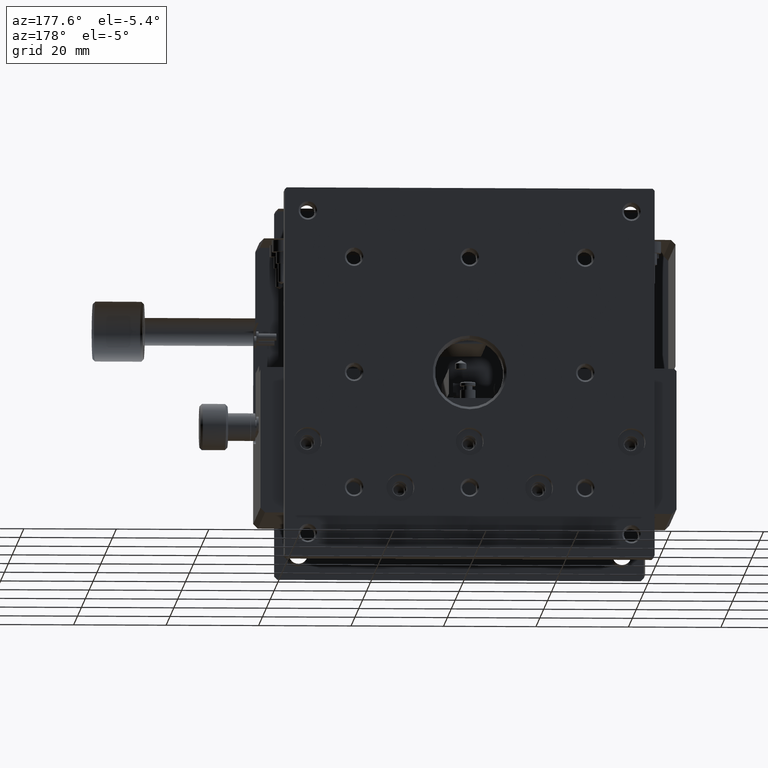
[diagram: clean part render]
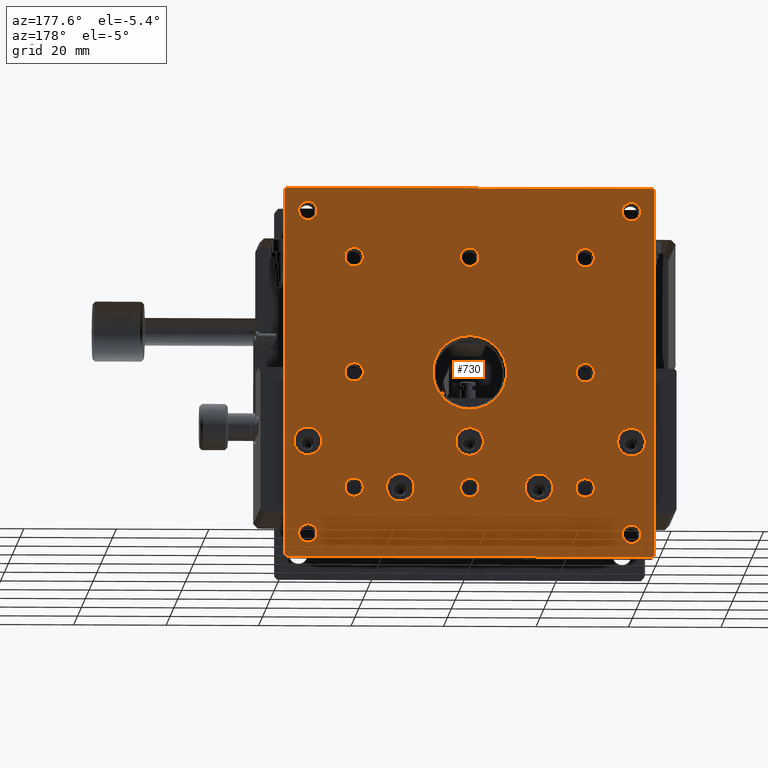
[diagram: same view with one face highlighted and labeled with its STEP entity id]
A machine part, auxiliary view. The second image highlights one B-rep face of the part: STEP entity #730.
In plain terms, the highlighted planar face has unit normal (0, 1, 0).
Its self-contained STEP definition (entity closure, byte-faithful):
#78 = ORIENTED_EDGE ( 'NONE', *, *, #9192, .F. ) ;
#195 = CARTESIAN_POINT ( 'NONE',  ( 65.00000000000000000, 54.99999999994315658, -62.99999999998817657 ) ) ;
#266 = CIRCLE ( 'NONE', #2776, 3.000000000000002665 ) ;
#437 = AXIS2_PLACEMENT_3D ( 'NONE', #8819, #518, #4216 ) ;
#453 = CIRCLE ( 'NONE', #8775, 1.999999999966348252 ) ;
#457 = FACE_BOUND ( 'NONE', #9647, .T. ) ;
#471 = ORIENTED_EDGE ( 'NONE', *, *, #8570, .T. ) ;
#473 = ORIENTED_EDGE ( 'NONE', *, *, #7778, .F. ) ;
#518 = DIRECTION ( 'NONE',  ( 0.000000000000000000, 1.000000000000000000, 0.000000000000000000 ) ) ;
#545 = AXIS2_PLACEMENT_3D ( 'NONE', #3341, #4133, #10624 ) ;
#575 = DIRECTION ( 'NONE',  ( 0.000000000000000000, -1.000000000000000000, -0.000000000000000000 ) ) ;
#577 = FACE_BOUND ( 'NONE', #6836, .T. ) ;
#634 = DIRECTION ( 'NONE',  ( 0.000000000000000000, 0.000000000000000000, 1.000000000000000000 ) ) ;
#637 = FACE_BOUND ( 'NONE', #5673, .T. ) ;
#698 = ORIENTED_EDGE ( 'NONE', *, *, #4987, .T. ) ;
#730 = ADVANCED_FACE ( 'NONE', ( #9735, #11513, #7139, #577, #6114, #3186, #10587, #8880, #1352, #4275, #457, #4160, #3238, #1538, #7855, #7967, #10647, #1416, #637 ), #5258, .T. ) ;
#764 = CARTESIAN_POINT ( 'NONE',  ( 79.57999999999999829, 55.00000000000000000, -80.00000000000000000 ) ) ;
#852 = CIRCLE ( 'NONE', #1423, 1.999999999957263297 ) ;
#904 = CARTESIAN_POINT ( 'NONE',  ( 0.4200000000000030376, 55.00000000000000000, -80.00000000000000000 ) ) ;
#943 = VERTEX_POINT ( 'NONE', #8454 ) ;
#964 = EDGE_CURVE ( 'NONE', #9982, #10717, #10269, .T. ) ;
#1115 = DIRECTION ( 'NONE',  ( 0.000000000000000000, 0.000000000000000000, 1.000000000000000000 ) ) ;
#1128 = ORIENTED_EDGE ( 'NONE', *, *, #5146, .T. ) ;
#1146 = DIRECTION ( 'NONE',  ( 0.000000000000000000, 0.000000000000000000, -1.000000000000000000 ) ) ;
#1158 = DIRECTION ( 'NONE',  ( -0.7071067811865460184, -0.000000000000000000, -0.7071067811865489050 ) ) ;
#1191 = EDGE_LOOP ( 'NONE', ( #10893 ) ) ;
#1193 = EDGE_LOOP ( 'NONE', ( #1248 ) ) ;
#1196 = DIRECTION ( 'NONE',  ( 0.7071067811865460184, -0.000000000000000000, -0.7071067811865489050 ) ) ;
#1242 = EDGE_CURVE ( 'NONE', #6350, #6350, #266, .T. ) ;
#1248 = ORIENTED_EDGE ( 'NONE', *, *, #4296, .T. ) ;
#1288 = CARTESIAN_POINT ( 'NONE',  ( 5.000000000000000000, 54.99999999994315658, -72.99999999997908162 ) ) ;
#1347 = VERTEX_POINT ( 'NONE', #4949 ) ;
#1352 = FACE_BOUND ( 'NONE', #5313, .T. ) ;
#1392 = EDGE_CURVE ( 'NONE', #943, #943, #4533, .T. ) ;
#1416 = FACE_BOUND ( 'NONE', #6709, .T. ) ;
#1423 = AXIS2_PLACEMENT_3D ( 'NONE', #1536, #3184, #1472 ) ;
#1459 = ORIENTED_EDGE ( 'NONE', *, *, #4366, .T. ) ;
#1464 = CARTESIAN_POINT ( 'NONE',  ( 40.00000000000000000, 55.00000000000000000, -40.00000000000000000 ) ) ;
#1472 = DIRECTION ( 'NONE',  ( 0.000000000000000000, 0.000000000000000000, 1.000000000000000000 ) ) ;
#1513 = CARTESIAN_POINT ( 'NONE',  ( 80.00000000000000000, 55.00000000000000000, 0.000000000000000000 ) ) ;
#1536 = CARTESIAN_POINT ( 'NONE',  ( 75.00000000000000000, 55.00000000000000000, -5.000000000000009770 ) ) ;
#1538 = FACE_BOUND ( 'NONE', #11885, .T. ) ;
#1567 = DIRECTION ( 'NONE',  ( 0.7071067811865474617, -0.000000000000000000, 0.7071067811865474617 ) ) ;
#1576 = DIRECTION ( 'NONE',  ( 0.000000000000000000, -1.000000000000000000, -0.000000000000000000 ) ) ;
#1642 = VERTEX_POINT ( 'NONE', #1742 ) ;
#1697 = DIRECTION ( 'NONE',  ( 0.000000000000000000, -1.000000000000000000, 0.000000000000000000 ) ) ;
#1700 = DIRECTION ( 'NONE',  ( 0.000000000000000000, -1.000000000000000000, -0.000000000000000000 ) ) ;
#1707 = CARTESIAN_POINT ( 'NONE',  ( 75.00000000000000000, 55.00000000000000000, -58.00000000000000000 ) ) ;
#1742 = CARTESIAN_POINT ( 'NONE',  ( 79.99999999999998579, 55.00000000000000000, -79.58000000000001251 ) ) ;
#1875 = VECTOR ( 'NONE', #7055, 1000.000000000000000 ) ;
#1942 = CARTESIAN_POINT ( 'NONE',  ( 65.00000000000000000, 55.00000000000000000, -15.00000000000000000 ) ) ;
#1980 = VECTOR ( 'NONE', #10730, 1000.000000000000000 ) ;
#2008 = CARTESIAN_POINT ( 'NONE',  ( 0.000000000000000000, 55.00000000000000000, -0.4200000000000019829 ) ) ;
#2028 = ORIENTED_EDGE ( 'NONE', *, *, #9988, .T. ) ;
#2070 = CARTESIAN_POINT ( 'NONE',  ( 0.4200000000000000955, 55.00000000000000000, -1.355252715606880543E-17 ) ) ;
#2120 = DIRECTION ( 'NONE',  ( 0.000000000000000000, -1.000000000000000000, -0.000000000000000000 ) ) ;
#2210 = DIRECTION ( 'NONE',  ( 0.000000000000000000, -1.000000000000000000, -0.000000000000000000 ) ) ;
#2264 = CARTESIAN_POINT ( 'NONE',  ( 5.000000000000000000, 54.99999999994315658, -75.00000000000000000 ) ) ;
#2265 = CARTESIAN_POINT ( 'NONE',  ( 0.000000000000000000, 55.00000000000000000, 0.000000000000000000 ) ) ;
#2331 = CARTESIAN_POINT ( 'NONE',  ( 75.00000000000000000, 54.99999999994315658, -75.00000000000000000 ) ) ;
#2332 = ORIENTED_EDGE ( 'NONE', *, *, #8718, .T. ) ;
#2543 = CARTESIAN_POINT ( 'NONE',  ( 9.012430558785755608E-16, 55.00000000000000000, -79.58000000000001251 ) ) ;
#2776 = AXIS2_PLACEMENT_3D ( 'NONE', #4566, #1697, #11800 ) ;
#2841 = CIRCLE ( 'NONE', #7319, 8.000000000000000000 ) ;
#2849 = ORIENTED_EDGE ( 'NONE', *, *, #10786, .T. ) ;
#2851 = VECTOR ( 'NONE', #1196, 1000.000000000000114 ) ;
#2949 = VECTOR ( 'NONE', #1158, 1000.000000000000114 ) ;
#3003 = CARTESIAN_POINT ( 'NONE',  ( 65.00000000000000000, 54.99999999994315658, -65.00000000000000000 ) ) ;
#3005 = VERTEX_POINT ( 'NONE', #4367 ) ;
#3008 = DIRECTION ( 'NONE',  ( 0.000000000000000000, 0.000000000000000000, -1.000000000000000000 ) ) ;
#3023 = CARTESIAN_POINT ( 'NONE',  ( 0.4200000000000019829, 55.00000000000000000, -80.00000000000000000 ) ) ;
#3041 = CARTESIAN_POINT ( 'NONE',  ( 75.00000000000000000, 55.00000000000000000, -3.000000000042746251 ) ) ;
#3068 = DIRECTION ( 'NONE',  ( 0.000000000000000000, -0.000000000000000000, 1.000000000000000000 ) ) ;
#3112 = DIRECTION ( 'NONE',  ( 0.000000000000000000, -1.000000000000000000, -0.000000000000000000 ) ) ;
#3115 = EDGE_LOOP ( 'NONE', ( #4230 ) ) ;
#3127 = DIRECTION ( 'NONE',  ( 0.000000000000000000, 0.000000000000000000, 1.000000000000000000 ) ) ;
#3128 = CARTESIAN_POINT ( 'NONE',  ( -6.776263578034401172E-18, 55.00000000000000000, -0.4200000000000024269 ) ) ;
#3157 = EDGE_LOOP ( 'NONE', ( #8598 ) ) ;
#3181 = VERTEX_POINT ( 'NONE', #1288 ) ;
#3184 = DIRECTION ( 'NONE',  ( 0.000000000000000000, -1.000000000000000000, -0.000000000000000000 ) ) ;
#3186 = FACE_BOUND ( 'NONE', #11379, .T. ) ;
#3238 = FACE_BOUND ( 'NONE', #7556, .T. ) ;
#3315 = EDGE_CURVE ( 'NONE', #3181, #3181, #9933, .T. ) ;
#3341 = CARTESIAN_POINT ( 'NONE',  ( 5.000000000000000000, 55.00000000000000000, -5.000000000000000000 ) ) ;
#3433 = AXIS2_PLACEMENT_3D ( 'NONE', #1942, #2120, #3786 ) ;
#3540 = CARTESIAN_POINT ( 'NONE',  ( 5.000000000000000000, 55.00000000000000000, -58.00000000000000000 ) ) ;
#3583 = LINE ( 'NONE', #3756, #8304 ) ;
#3638 = EDGE_CURVE ( 'NONE', #10922, #8085, #4584, .T. ) ;
#3645 = CARTESIAN_POINT ( 'NONE',  ( 15.00000000000000000, 54.99999999994315658, -38.00000000001091394 ) ) ;
#3687 = CIRCLE ( 'NONE', #3882, 1.999999999989086952 ) ;
#3756 = CARTESIAN_POINT ( 'NONE',  ( 0.000000000000000000, 55.00000000000000000, 0.000000000000000000 ) ) ;
#3786 = DIRECTION ( 'NONE',  ( 0.000000000000000000, 0.000000000000000000, 1.000000000000000000 ) ) ;
#3822 = VERTEX_POINT ( 'NONE', #6325 ) ;
#3825 = DIRECTION ( 'NONE',  ( 0.000000000000000000, -1.000000000000000000, 0.000000000000000000 ) ) ;
#3837 = CARTESIAN_POINT ( 'NONE',  ( 80.00000000000000000, 55.00000000000000000, -0.4199999999999998179 ) ) ;
#3838 = EDGE_CURVE ( 'NONE', #11507, #11507, #2841, .T. ) ;
#3848 = DIRECTION ( 'NONE',  ( 0.000000000000000000, 0.000000000000000000, 1.000000000000000000 ) ) ;
#3882 = AXIS2_PLACEMENT_3D ( 'NONE', #4450, #4207, #6037 ) ;
#3973 = VERTEX_POINT ( 'NONE', #6715 ) ;
#4008 = CIRCLE ( 'NONE', #3433, 1.999999999966348252 ) ;
#4013 = AXIS2_PLACEMENT_3D ( 'NONE', #9099, #1700, #8315 ) ;
#4025 = DIRECTION ( 'NONE',  ( 0.000000000000000000, -1.000000000000000000, -0.000000000000000000 ) ) ;
#4037 = EDGE_LOOP ( 'NONE', ( #10851 ) ) ;
#4044 = EDGE_CURVE ( 'NONE', #1347, #1347, #6745, .T. ) ;
#4091 = CARTESIAN_POINT ( 'NONE',  ( 40.00000000000000000, 54.99999999994315658, -65.00000000000000000 ) ) ;
#4109 = DIRECTION ( 'NONE',  ( 0.000000000000000000, -1.000000000000000000, 0.000000000000000000 ) ) ;
#4133 = DIRECTION ( 'NONE',  ( 0.000000000000000000, -1.000000000000000000, -0.000000000000000000 ) ) ;
#4160 = FACE_BOUND ( 'NONE', #7632, .T. ) ;
#4196 = VERTEX_POINT ( 'NONE', #7892 ) ;
#4207 = DIRECTION ( 'NONE',  ( 0.000000000000000000, -1.000000000000000000, -0.000000000000000000 ) ) ;
#4216 = DIRECTION ( 'NONE',  ( 0.000000000000000000, -0.000000000000000000, 1.000000000000000000 ) ) ;
#4230 = ORIENTED_EDGE ( 'NONE', *, *, #4044, .T. ) ;
#4263 = DIRECTION ( 'NONE',  ( 0.000000000000000000, -1.000000000000000000, -0.000000000000000000 ) ) ;
#4275 = FACE_BOUND ( 'NONE', #9601, .T. ) ;
#4296 = EDGE_CURVE ( 'NONE', #3973, #3973, #11010, .T. ) ;
#4366 = EDGE_CURVE ( 'NONE', #7126, #1642, #8730, .T. ) ;
#4367 = CARTESIAN_POINT ( 'NONE',  ( 79.58000000000001251, 55.00000000000000000, -2.602085213965210247E-15 ) ) ;
#4450 = CARTESIAN_POINT ( 'NONE',  ( 65.00000000000000000, 54.99999999994315658, -40.00000000000000000 ) ) ;
#4533 = CIRCLE ( 'NONE', #5896, 3.000000000000002665 ) ;
#4566 = CARTESIAN_POINT ( 'NONE',  ( 55.00000000000000000, 55.00000000000000000, -65.00000000000000000 ) ) ;
#4584 = LINE ( 'NONE', #11995, #1980 ) ;
#4596 = EDGE_CURVE ( 'NONE', #7484, #8085, #6560, .T. ) ;
#4682 = ORIENTED_EDGE ( 'NONE', *, *, #11121, .T. ) ;
#4831 = DIRECTION ( 'NONE',  ( 0.000000000000000000, -1.000000000000000000, -0.000000000000000000 ) ) ;
#4857 = LINE ( 'NONE', #9401, #5488 ) ;
#4949 = CARTESIAN_POINT ( 'NONE',  ( 15.00000000000000000, 54.99999999994315658, -62.99999999998817657 ) ) ;
#4987 = EDGE_CURVE ( 'NONE', #5191, #5191, #9650, .T. ) ;
#5002 = DIRECTION ( 'NONE',  ( 0.000000000000000000, 0.000000000000000000, 1.000000000000000000 ) ) ;
#5054 = CARTESIAN_POINT ( 'NONE',  ( 40.00000000000000000, 54.99999999994315658, -62.99999999998817657 ) ) ;
#5073 = ORIENTED_EDGE ( 'NONE', *, *, #6121, .T. ) ;
#5146 = EDGE_CURVE ( 'NONE', #9982, #3005, #3583, .T. ) ;
#5191 = VERTEX_POINT ( 'NONE', #1707 ) ;
#5250 = DIRECTION ( 'NONE',  ( 0.000000000000000000, 0.000000000000000000, -1.000000000000000000 ) ) ;
#5258 = PLANE ( 'NONE',  #437 ) ;
#5313 = EDGE_LOOP ( 'NONE', ( #5073 ) ) ;
#5345 = EDGE_CURVE ( 'NONE', #11864, #11864, #11034, .T. ) ;
#5371 = EDGE_LOOP ( 'NONE', ( #2028 ) ) ;
#5488 = VECTOR ( 'NONE', #11542, 999.9999999999998863 ) ;
#5491 = EDGE_CURVE ( 'NONE', #10951, #10951, #11041, .T. ) ;
#5673 = EDGE_LOOP ( 'NONE', ( #11666 ) ) ;
#5758 = CARTESIAN_POINT ( 'NONE',  ( 75.00000000000000000, 55.00000000000000000, -55.00000000000000000 ) ) ;
#5799 = CARTESIAN_POINT ( 'NONE',  ( 15.00000000000000000, 55.00000000000000000, -15.00000000000000000 ) ) ;
#5800 = AXIS2_PLACEMENT_3D ( 'NONE', #11531, #4109, #7807 ) ;
#5896 = AXIS2_PLACEMENT_3D ( 'NONE', #7473, #3825, #1146 ) ;
#5920 = DIRECTION ( 'NONE',  ( 0.000000000000000000, 0.000000000000000000, 1.000000000000000000 ) ) ;
#5939 = ORIENTED_EDGE ( 'NONE', *, *, #1392, .T. ) ;
#6037 = DIRECTION ( 'NONE',  ( 0.000000000000000000, 0.000000000000000000, 1.000000000000000000 ) ) ;
#6039 = AXIS2_PLACEMENT_3D ( 'NONE', #11506, #3112, #5920 ) ;
#6059 = DIRECTION ( 'NONE',  ( 0.000000000000000000, 0.000000000000000000, 1.000000000000000000 ) ) ;
#6114 = FACE_BOUND ( 'NONE', #3115, .T. ) ;
#6121 = EDGE_CURVE ( 'NONE', #7536, #7536, #4008, .T. ) ;
#6140 = CARTESIAN_POINT ( 'NONE',  ( 80.00000000000000000, 55.00000000000000711, -79.57999999999999829 ) ) ;
#6325 = CARTESIAN_POINT ( 'NONE',  ( 40.00000000000000000, 55.00000000000000000, -58.00000000000000000 ) ) ;
#6329 = ORIENTED_EDGE ( 'NONE', *, *, #3315, .T. ) ;
#6350 = VERTEX_POINT ( 'NONE', #10044 ) ;
#6381 = VERTEX_POINT ( 'NONE', #10069 ) ;
#6560 = LINE ( 'NONE', #3023, #2851 ) ;
#6632 = ORIENTED_EDGE ( 'NONE', *, *, #3638, .T. ) ;
#6709 = EDGE_LOOP ( 'NONE', ( #5939 ) ) ;
#6715 = CARTESIAN_POINT ( 'NONE',  ( 5.000000000000000000, 55.00000000000000000, -3.000000000042746251 ) ) ;
#6745 = CIRCLE ( 'NONE', #4013, 2.000000000011825652 ) ;
#6791 = ORIENTED_EDGE ( 'NONE', *, *, #964, .F. ) ;
#6817 = VERTEX_POINT ( 'NONE', #195 ) ;
#6836 = EDGE_LOOP ( 'NONE', ( #2332 ) ) ;
#6879 = VECTOR ( 'NONE', #1567, 1000.000000000000114 ) ;
#7005 = DIRECTION ( 'NONE',  ( 0.000000000000000000, -1.000000000000000000, 0.000000000000000000 ) ) ;
#7055 = DIRECTION ( 'NONE',  ( -0.000000000000000000, 0.000000000000000000, -1.000000000000000000 ) ) ;
#7113 = ORIENTED_EDGE ( 'NONE', *, *, #11705, .T. ) ;
#7126 = VERTEX_POINT ( 'NONE', #3837 ) ;
#7139 = FACE_BOUND ( 'NONE', #1193, .T. ) ;
#7164 = LINE ( 'NONE', #6140, #6879 ) ;
#7275 = ORIENTED_EDGE ( 'NONE', *, *, #4596, .F. ) ;
#7319 = AXIS2_PLACEMENT_3D ( 'NONE', #1464, #4263, #5002 ) ;
#7473 = CARTESIAN_POINT ( 'NONE',  ( 25.00000000000000000, 55.00000000000000000, -65.00000000000000000 ) ) ;
#7484 = VERTEX_POINT ( 'NONE', #2543 ) ;
#7520 = AXIS2_PLACEMENT_3D ( 'NONE', #5758, #9438, #3008 ) ;
#7536 = VERTEX_POINT ( 'NONE', #11985 ) ;
#7552 = EDGE_LOOP ( 'NONE', ( #7113 ) ) ;
#7556 = EDGE_LOOP ( 'NONE', ( #10584 ) ) ;
#7579 = CIRCLE ( 'NONE', #6039, 1.999999999989086952 ) ;
#7632 = EDGE_LOOP ( 'NONE', ( #471 ) ) ;
#7778 = EDGE_CURVE ( 'NONE', #7126, #3005, #4857, .T. ) ;
#7807 = DIRECTION ( 'NONE',  ( 0.000000000000000000, 0.000000000000000000, -1.000000000000000000 ) ) ;
#7855 = FACE_BOUND ( 'NONE', #4037, .T. ) ;
#7892 = CARTESIAN_POINT ( 'NONE',  ( 15.00000000000000000, 55.00000000000000000, -13.00000000003365130 ) ) ;
#7927 = DIRECTION ( 'NONE',  ( 0.000000000000000000, -1.000000000000000000, -0.000000000000000000 ) ) ;
#7941 = CIRCLE ( 'NONE', #10865, 3.000000000000002665 ) ;
#7967 = FACE_BOUND ( 'NONE', #11452, .T. ) ;
#8013 = CARTESIAN_POINT ( 'NONE',  ( 40.00000000000000000, 55.00000000000000000, -15.00000000000000000 ) ) ;
#8083 = CARTESIAN_POINT ( 'NONE',  ( 75.00000000000000000, 54.99999999994315658, -72.99999999997908162 ) ) ;
#8085 = VERTEX_POINT ( 'NONE', #904 ) ;
#8202 = CIRCLE ( 'NONE', #10153, 2.000000000011825652 ) ;
#8304 = VECTOR ( 'NONE', #8354, 1000.000000000000000 ) ;
#8315 = DIRECTION ( 'NONE',  ( 0.000000000000000000, 0.000000000000000000, 1.000000000000000000 ) ) ;
#8354 = DIRECTION ( 'NONE',  ( 1.000000000000000000, 0.000000000000000000, -0.000000000000000000 ) ) ;
#8454 = CARTESIAN_POINT ( 'NONE',  ( 25.00000000000000000, 55.00000000000000000, -68.00000000000000000 ) ) ;
#8514 = EDGE_LOOP ( 'NONE', ( #6632, #7275, #2849, #6791, #1128, #473, #1459, #78 ) ) ;
#8570 = EDGE_CURVE ( 'NONE', #6817, #6817, #11715, .T. ) ;
#8571 = CARTESIAN_POINT ( 'NONE',  ( 40.00000000000000000, 55.00000000000000000, -32.00000000000000000 ) ) ;
#8598 = ORIENTED_EDGE ( 'NONE', *, *, #11260, .T. ) ;
#8663 = CARTESIAN_POINT ( 'NONE',  ( 40.00000000000000000, 55.00000000000000000, -13.00000000003365130 ) ) ;
#8718 = EDGE_CURVE ( 'NONE', #10391, #10391, #8202, .T. ) ;
#8730 = LINE ( 'NONE', #1513, #1875 ) ;
#8775 = AXIS2_PLACEMENT_3D ( 'NONE', #5799, #4025, #3848 ) ;
#8804 = EDGE_CURVE ( 'NONE', #9596, #9596, #852, .T. ) ;
#8819 = CARTESIAN_POINT ( 'NONE',  ( 0.000000000000000000, 55.00000000000000000, 0.000000000000000000 ) ) ;
#8880 = FACE_BOUND ( 'NONE', #7552, .T. ) ;
#9076 = AXIS2_PLACEMENT_3D ( 'NONE', #2331, #7927, #6059 ) ;
#9099 = CARTESIAN_POINT ( 'NONE',  ( 15.00000000000000000, 54.99999999994315658, -65.00000000000000000 ) ) ;
#9192 = EDGE_CURVE ( 'NONE', #10922, #1642, #7164, .T. ) ;
#9258 = CIRCLE ( 'NONE', #11602, 1.999999999966348252 ) ;
#9401 = CARTESIAN_POINT ( 'NONE',  ( 79.57999999999999829, 55.00000000000000000, 0.000000000000000000 ) ) ;
#9438 = DIRECTION ( 'NONE',  ( 0.000000000000000000, -1.000000000000000000, 0.000000000000000000 ) ) ;
#9596 = VERTEX_POINT ( 'NONE', #3041 ) ;
#9601 = EDGE_LOOP ( 'NONE', ( #11267 ) ) ;
#9647 = EDGE_LOOP ( 'NONE', ( #11814 ) ) ;
#9650 = CIRCLE ( 'NONE', #7520, 3.000000000000002665 ) ;
#9735 = FACE_OUTER_BOUND ( 'NONE', #8514, .T. ) ;
#9933 = CIRCLE ( 'NONE', #10910, 2.000000000020915714 ) ;
#9982 = VERTEX_POINT ( 'NONE', #2070 ) ;
#9988 = EDGE_CURVE ( 'NONE', #4196, #4196, #453, .T. ) ;
#10044 = CARTESIAN_POINT ( 'NONE',  ( 55.00000000000000000, 55.00000000000000000, -68.00000000000000000 ) ) ;
#10069 = CARTESIAN_POINT ( 'NONE',  ( 65.00000000000000000, 54.99999999994315658, -38.00000000001091394 ) ) ;
#10088 = VECTOR ( 'NONE', #3068, 1000.000000000000000 ) ;
#10153 = AXIS2_PLACEMENT_3D ( 'NONE', #4091, #575, #634 ) ;
#10269 = LINE ( 'NONE', #2008, #2949 ) ;
#10391 = VERTEX_POINT ( 'NONE', #5054 ) ;
#10435 = VERTEX_POINT ( 'NONE', #8663 ) ;
#10584 = ORIENTED_EDGE ( 'NONE', *, *, #11338, .T. ) ;
#10587 = FACE_BOUND ( 'NONE', #5371, .T. ) ;
#10597 = LINE ( 'NONE', #2265, #10088 ) ;
#10624 = DIRECTION ( 'NONE',  ( 0.000000000000000000, 0.000000000000000000, 1.000000000000000000 ) ) ;
#10647 = FACE_BOUND ( 'NONE', #3157, .T. ) ;
#10717 = VERTEX_POINT ( 'NONE', #3128 ) ;
#10730 = DIRECTION ( 'NONE',  ( -1.000000000000000000, -0.000000000000000000, 0.000000000000000000 ) ) ;
#10786 = EDGE_CURVE ( 'NONE', #7484, #10717, #10597, .T. ) ;
#10851 = ORIENTED_EDGE ( 'NONE', *, *, #5345, .T. ) ;
#10865 = AXIS2_PLACEMENT_3D ( 'NONE', #11625, #7005, #5250 ) ;
#10869 = DIRECTION ( 'NONE',  ( 0.000000000000000000, 0.000000000000000000, 1.000000000000000000 ) ) ;
#10893 = ORIENTED_EDGE ( 'NONE', *, *, #3838, .T. ) ;
#10910 = AXIS2_PLACEMENT_3D ( 'NONE', #2264, #2210, #3127 ) ;
#10922 = VERTEX_POINT ( 'NONE', #764 ) ;
#10951 = VERTEX_POINT ( 'NONE', #8083 ) ;
#11010 = CIRCLE ( 'NONE', #545, 1.999999999957253749 ) ;
#11034 = CIRCLE ( 'NONE', #5800, 3.000000000000002665 ) ;
#11041 = CIRCLE ( 'NONE', #9076, 2.000000000020915714 ) ;
#11121 = EDGE_CURVE ( 'NONE', #11972, #11972, #7579, .T. ) ;
#11260 = EDGE_CURVE ( 'NONE', #3822, #3822, #7941, .T. ) ;
#11267 = ORIENTED_EDGE ( 'NONE', *, *, #8804, .T. ) ;
#11338 = EDGE_CURVE ( 'NONE', #6381, #6381, #3687, .T. ) ;
#11379 = EDGE_LOOP ( 'NONE', ( #4682 ) ) ;
#11452 = EDGE_LOOP ( 'NONE', ( #698 ) ) ;
#11506 = CARTESIAN_POINT ( 'NONE',  ( 15.00000000000000000, 54.99999999994315658, -40.00000000000000000 ) ) ;
#11507 = VERTEX_POINT ( 'NONE', #8571 ) ;
#11513 = FACE_BOUND ( 'NONE', #1191, .T. ) ;
#11531 = CARTESIAN_POINT ( 'NONE',  ( 5.000000000000000000, 55.00000000000000000, -55.00000000000000000 ) ) ;
#11542 = DIRECTION ( 'NONE',  ( -0.7071067811865510144, -0.000000000000000000, 0.7071067811865441310 ) ) ;
#11602 = AXIS2_PLACEMENT_3D ( 'NONE', #8013, #1576, #10869 ) ;
#11625 = CARTESIAN_POINT ( 'NONE',  ( 40.00000000000000000, 55.00000000000000000, -55.00000000000000000 ) ) ;
#11666 = ORIENTED_EDGE ( 'NONE', *, *, #1242, .T. ) ;
#11705 = EDGE_CURVE ( 'NONE', #10435, #10435, #9258, .T. ) ;
#11715 = CIRCLE ( 'NONE', #11908, 2.000000000011825652 ) ;
#11800 = DIRECTION ( 'NONE',  ( 0.000000000000000000, 0.000000000000000000, -1.000000000000000000 ) ) ;
#11814 = ORIENTED_EDGE ( 'NONE', *, *, #5491, .T. ) ;
#11864 = VERTEX_POINT ( 'NONE', #3540 ) ;
#11885 = EDGE_LOOP ( 'NONE', ( #6329 ) ) ;
#11908 = AXIS2_PLACEMENT_3D ( 'NONE', #3003, #4831, #1115 ) ;
#11972 = VERTEX_POINT ( 'NONE', #3645 ) ;
#11985 = CARTESIAN_POINT ( 'NONE',  ( 65.00000000000000000, 55.00000000000000000, -13.00000000003365130 ) ) ;
#11995 = CARTESIAN_POINT ( 'NONE',  ( 0.000000000000000000, 55.00000000000000000, -80.00000000000000000 ) ) ;